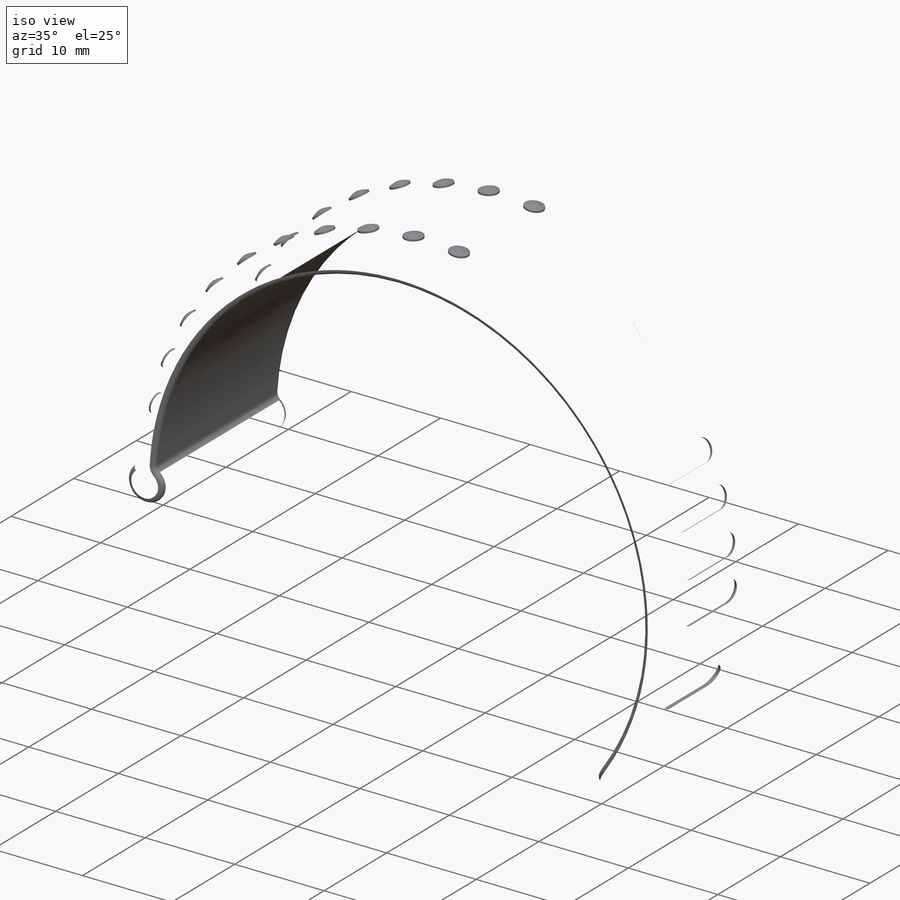
[diagram: iso view]
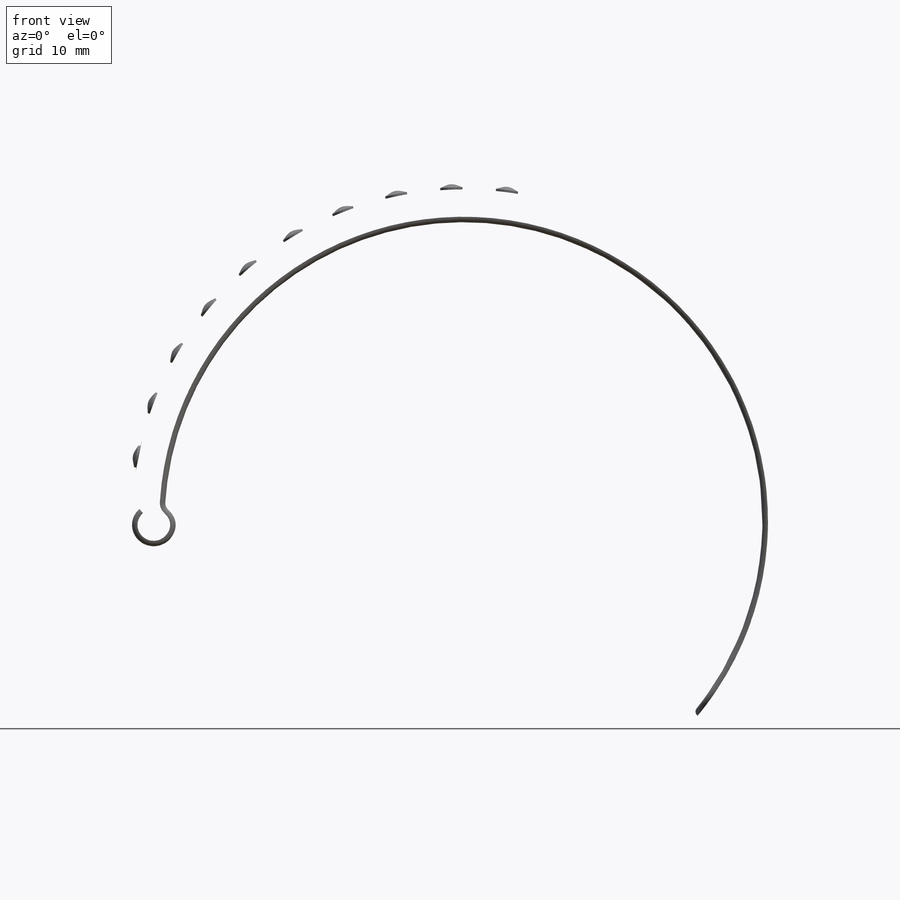
[diagram: front view]
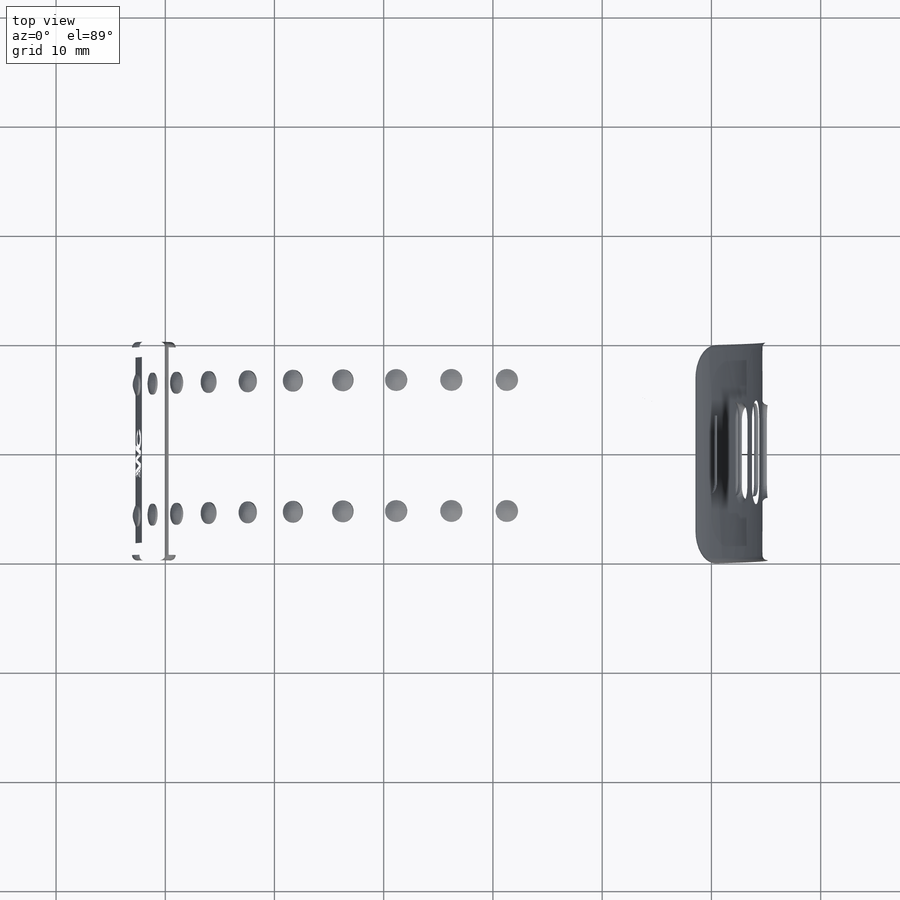
[diagram: top view]
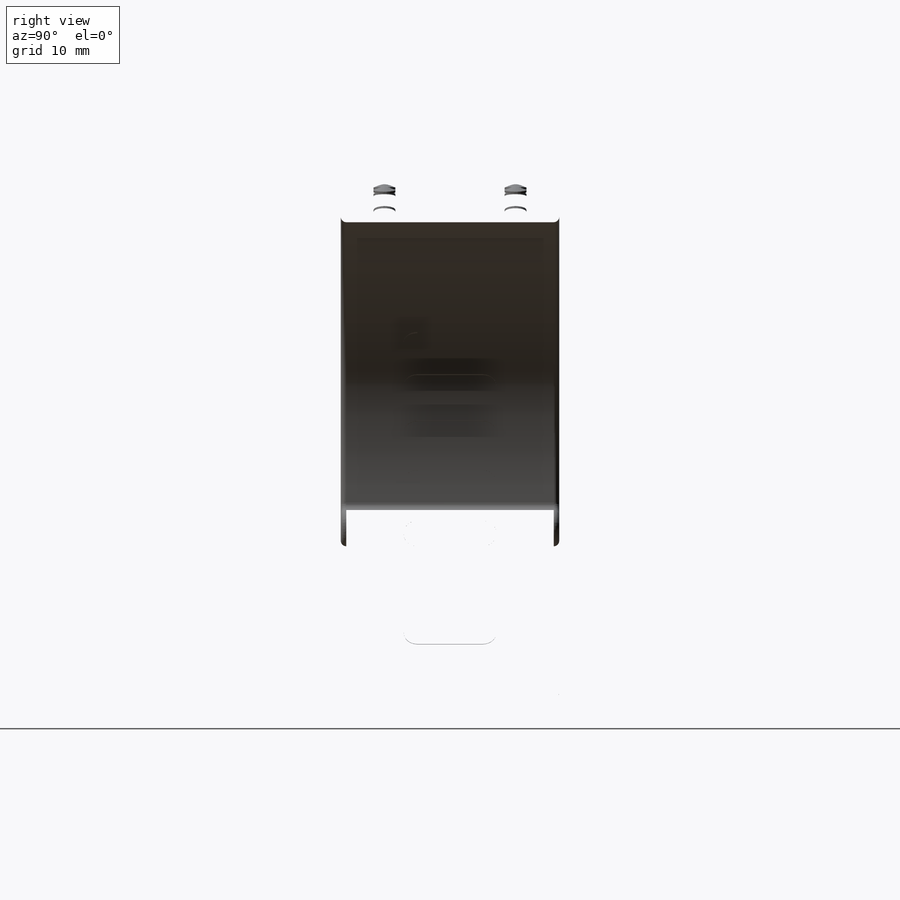
[diagram: right view]
SOLIDWORKS PART (.sldprt)
format: sldprt  version: not decoded by parser v0  size: 3,141,120 bytes
history: native  units: mm
features: sketch x8, fillet x6, extrude x4, cut_extrude x4, pattern_linear x2, material x1, dome x1, plane x1 (+11 scaffold rows collapsed)
feature tree (38):
  scaffold x11  (default folders/planes/origin — collapsed)
  material  "Material <not specified>"
  sketch  "Sketch1"  dims[D1=20.0mm D2=115.0mm D3=20.0mm]
  extrude  "Boss-Extrude1"  Depth=2mm
  fillet  "Fillet1"  Radius=3mm
  sketch  "Sketch3"  dims[D1=4.0mm]
  extrude  "Boss-Extrude2"  [1 undecoded]
  sketch  "Sketch4"  dims[D1=2.0mm]
  cut_extrude  "Cut-Extrude1"  [1 undecoded]
  fillet  "Fillet2"  Radius=1mm
  sketch  "Sketch5"  dims[D1=18.0mm D2=4.0mm]
  extrude  "Boss-Extrude3"  Depth=1mm
  fillet  "Fillet3"  Radius=0.5mm
  fillet  "Fillet4"  Radius=0.5mm
  sketch  "Sketch9"  dims[D2=2.0mm D1=6.0mm D3=6.0mm]
  extrude  "Boss-Extrude4"  Depth=0.2mm
  dome  "Dome1"
  pattern_linear  "LPattern1"  Count1=10 Count2=1 Spacing1=5mm Spacing2=10mm
  sketch  "Sketch10"  dims[D2=1.25mm D1=6.0mm]
  cut_extrude  "Cut-Extrude3"  Depth=4mm
  fillet  "Fillet5"  Radius=0.5mm
  pattern_linear  "LPattern2"  Count1=10 Count2=1 Spacing1=5mm Spacing2=10mm
  fillet  "Fillet6"  Radius=0.5mm
  sketch  "Sketch7"  dims[D1=1.0mm]
  cut_extrude  "Cut-Extrude2"  [1 undecoded]
  plane  "Plane1"  Offset=15mm
  sketch  "Sketch12"
  cut_extrude  "Cut-Extrude4"  Depth=0.1mm
decode coverage: 20 of 25 modeling features carry decoded parameters
note: 3 parameter values undecoded
summary: no parameter record found for 3 features
note: suppression state not decoded; provenance and decode notes live in map.json
